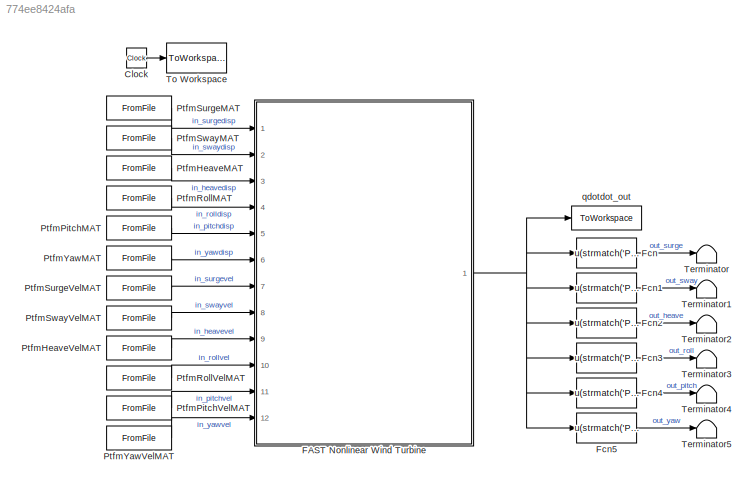
MODEL slx_774ee8424afa
KIND model
CONFIG AbsTol = auto
CONFIG EnableMultiTasking = on
CONFIG FixedStep = DT
CONFIG MaxStep = DT
CONFIG MinStep = auto
CONFIG RelTol = 1e-3
CONFIG SampleTimeConstraint = Unconstrained
CONFIG SolverName = ode4
CONFIG StartTime = 0.0
CONFIG StopTime = TMax
BLOCK [Clock] Clock
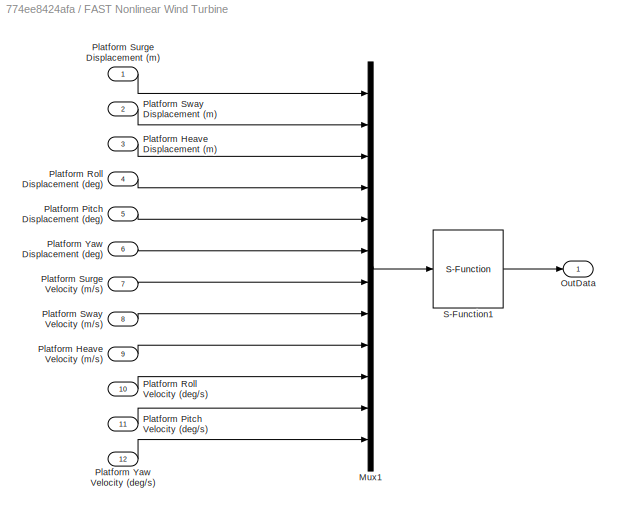
BLOCK [SubSystem] FAST Nonlinear Wind Turbine
  Ports = [12, 1]
  RequestExecContextInheritance = off
BLOCK [Mux] FAST Nonlinear Wind Turbine/Mux1
  DisplayOption = bar
  Inputs = 12
  Ports = [12, 1]
BLOCK [Outport] FAST Nonlinear Wind Turbine/OutData
BLOCK [Inport] FAST Nonlinear Wind Turbine/Platform Heave Displacement (m)
  Port = 3
BLOCK [Inport] FAST Nonlinear Wind Turbine/Platform Heave Velocity (m//s)
  Port = 9
BLOCK [Inport] FAST Nonlinear Wind Turbine/Platform Pitch Displacement (deg)
  Port = 5
BLOCK [Inport] FAST Nonlinear Wind Turbine/Platform Pitch Velocity (deg//s)
  Port = 11
BLOCK [Inport] FAST Nonlinear Wind Turbine/Platform Roll Displacement (deg)
  Port = 4
BLOCK [Inport] FAST Nonlinear Wind Turbine/Platform Roll Velocity (deg//s)
  Port = 10
BLOCK [Inport] FAST Nonlinear Wind Turbine/Platform Surge Displacement (m)
BLOCK [Inport] FAST Nonlinear Wind Turbine/Platform Surge Velocity (m//s)
  Port = 7
BLOCK [Inport] FAST Nonlinear Wind Turbine/Platform Sway Displacement (m)
  Port = 2
BLOCK [Inport] FAST Nonlinear Wind Turbine/Platform Sway Velocity (m//s)
  Port = 8
BLOCK [Inport] FAST Nonlinear Wind Turbine/Platform Yaw Displacement (deg)
  Port = 6
BLOCK [Inport] FAST Nonlinear Wind Turbine/Platform Yaw Velocity (deg//s)
  Port = 12
BLOCK [S-Function] FAST Nonlinear Wind Turbine/S-Function1
  EnableBusSupport = off
  FunctionName = FAST_SFunc
  Parameters = FAST_InputFileName, TMax, 0
  Ports = [1, 1]
  SFcnIsStateOwnerBlock = off
  SFunctionDeploymentMode = off
BLOCK [Fcn] Fcn
  Commented = on
  Expr = u(strmatch('PtfmSurge',OutList))
  NameLocation = top
BLOCK [Fcn] Fcn1
  Commented = on
  Expr = u(strmatch('PtfmSway',OutList))
  NameLocation = top
BLOCK [Fcn] Fcn2
  Commented = on
  Expr = u(strmatch('PtfmHeave',OutList))
  NameLocation = top
BLOCK [Fcn] Fcn3
  Commented = on
  Expr = u(strmatch('PtfmRoll',OutList))
  NameLocation = top
BLOCK [Fcn] Fcn4
  Commented = on
  Expr = u(strmatch('PtfmPitch',OutList))
  NameLocation = top
BLOCK [Fcn] Fcn5
  Commented = on
  Expr = u(strmatch('PtfmYaw',OutList))
  NameLocation = top
BLOCK [FromFile] PtfmHeaveMAT
  FileName = report data\MAT\PtfmHeave_TCC5_Ptfm.mat
BLOCK [FromFile] PtfmHeaveVelMAT
  FileName = report data\MAT\PtfmHeaveVel_TCC5_Ptfm.mat
BLOCK [FromFile] PtfmPitchMAT
  FileName = report data\MAT\PtfmPitch_TCC5_Ptfm.mat
BLOCK [FromFile] PtfmPitchVelMAT
  FileName = report data\MAT\PtfmPitchVel_TCC5_Ptfm.mat
BLOCK [FromFile] PtfmRollMAT
  FileName = report data\MAT\PtfmRoll_TCC5_Ptfm.mat
BLOCK [FromFile] PtfmRollVelMAT
  FileName = report data\MAT\PtfmRollVel_TCC5_Ptfm.mat
BLOCK [FromFile] PtfmSurgeMAT
  FileName = report data\MAT\PtfmSurge_TCC5_Ptfm.mat
BLOCK [FromFile] PtfmSurgeVelMAT
  FileName = report data\MAT\PtfmSurgeVel_TCC5_Ptfm.mat
BLOCK [FromFile] PtfmSwayMAT
  FileName = report data\MAT\PtfmSway_TCC5_Ptfm.mat
BLOCK [FromFile] PtfmSwayVelMAT
  FileName = report data\MAT\PtfmSwayVel_TCC5_Ptfm.mat
BLOCK [FromFile] PtfmYawMAT
  FileName = report data\MAT\PtfmYaw_TCC5_Ptfm.mat
BLOCK [FromFile] PtfmYawVelMAT
  FileName = report data\MAT\PtfmYawVel_TCC5_Ptfm.mat
BLOCK [Terminator] Terminator
  Commented = on
BLOCK [Terminator] Terminator1
  Commented = on
BLOCK [Terminator] Terminator2
  Commented = on
BLOCK [Terminator] Terminator3
  Commented = on
BLOCK [Terminator] Terminator4
  Commented = on
BLOCK [Terminator] Terminator5
  Commented = on
BLOCK [ToWorkspace] To Workspace
  MaxDataPoints = inf
  Ports = [1]
  SampleTime = -1
  VariableName = Time
BLOCK [ToWorkspace] qdotdot_out
  MaxDataPoints = inf
  Ports = [1]
  SampleTime = -1
  VariableName = OutData
LINE Clock:1 -> To Workspace:1
LINE FAST Nonlinear Wind Turbine/Mux1:1 -> FAST Nonlinear Wind Turbine/S-Function1:1
LINE FAST Nonlinear Wind Turbine/Platform Heave Displacement (m):1 -> FAST Nonlinear Wind Turbine/Mux1:3
LINE FAST Nonlinear Wind Turbine/Platform Heave Velocity (m//s):1 -> FAST Nonlinear Wind Turbine/Mux1:9
LINE FAST Nonlinear Wind Turbine/Platform Pitch Displacement (deg):1 -> FAST Nonlinear Wind Turbine/Mux1:5
LINE FAST Nonlinear Wind Turbine/Platform Pitch Velocity (deg//s):1 -> FAST Nonlinear Wind Turbine/Mux1:11
LINE FAST Nonlinear Wind Turbine/Platform Roll Displacement (deg):1 -> FAST Nonlinear Wind Turbine/Mux1:4
LINE FAST Nonlinear Wind Turbine/Platform Roll Velocity (deg//s):1 -> FAST Nonlinear Wind Turbine/Mux1:10
LINE FAST Nonlinear Wind Turbine/Platform Surge Displacement (m):1 -> FAST Nonlinear Wind Turbine/Mux1:1
LINE FAST Nonlinear Wind Turbine/Platform Surge Velocity (m//s):1 -> FAST Nonlinear Wind Turbine/Mux1:7
LINE FAST Nonlinear Wind Turbine/Platform Sway Displacement (m):1 -> FAST Nonlinear Wind Turbine/Mux1:2
LINE FAST Nonlinear Wind Turbine/Platform Sway Velocity (m//s):1 -> FAST Nonlinear Wind Turbine/Mux1:8
LINE FAST Nonlinear Wind Turbine/Platform Yaw Displacement (deg):1 -> FAST Nonlinear Wind Turbine/Mux1:6
LINE FAST Nonlinear Wind Turbine/Platform Yaw Velocity (deg//s):1 -> FAST Nonlinear Wind Turbine/Mux1:12
LINE FAST Nonlinear Wind Turbine/S-Function1:1 -> FAST Nonlinear Wind Turbine/OutData:1
NET FAST Nonlinear Wind Turbine:1 -> Fcn1:1, Fcn2:1, Fcn3:1, Fcn4:1, Fcn5:1, Fcn:1, qdotdot_out:1
LINE Fcn1:1 -> Terminator1:1
LINE Fcn2:1 -> Terminator2:1
LINE Fcn3:1 -> Terminator3:1
LINE Fcn4:1 -> Terminator4:1
LINE Fcn5:1 -> Terminator5:1
LINE Fcn:1 -> Terminator:1
LINE PtfmHeaveMAT:1 -> FAST Nonlinear Wind Turbine:3
LINE PtfmHeaveVelMAT:1 -> FAST Nonlinear Wind Turbine:9
LINE PtfmPitchMAT:1 -> FAST Nonlinear Wind Turbine:5
LINE PtfmPitchVelMAT:1 -> FAST Nonlinear Wind Turbine:11
LINE PtfmRollMAT:1 -> FAST Nonlinear Wind Turbine:4
LINE PtfmRollVelMAT:1 -> FAST Nonlinear Wind Turbine:10
LINE PtfmSurgeMAT:1 -> FAST Nonlinear Wind Turbine:1
LINE PtfmSurgeVelMAT:1 -> FAST Nonlinear Wind Turbine:7
LINE PtfmSwayMAT:1 -> FAST Nonlinear Wind Turbine:2
LINE PtfmSwayVelMAT:1 -> FAST Nonlinear Wind Turbine:8
LINE PtfmYawMAT:1 -> FAST Nonlinear Wind Turbine:6
LINE PtfmYawVelMAT:1 -> FAST Nonlinear Wind Turbine:12
note: NET lines group one-source signal fan-out (src -> all destinations, sorted); 1:1 wires keep LINE
